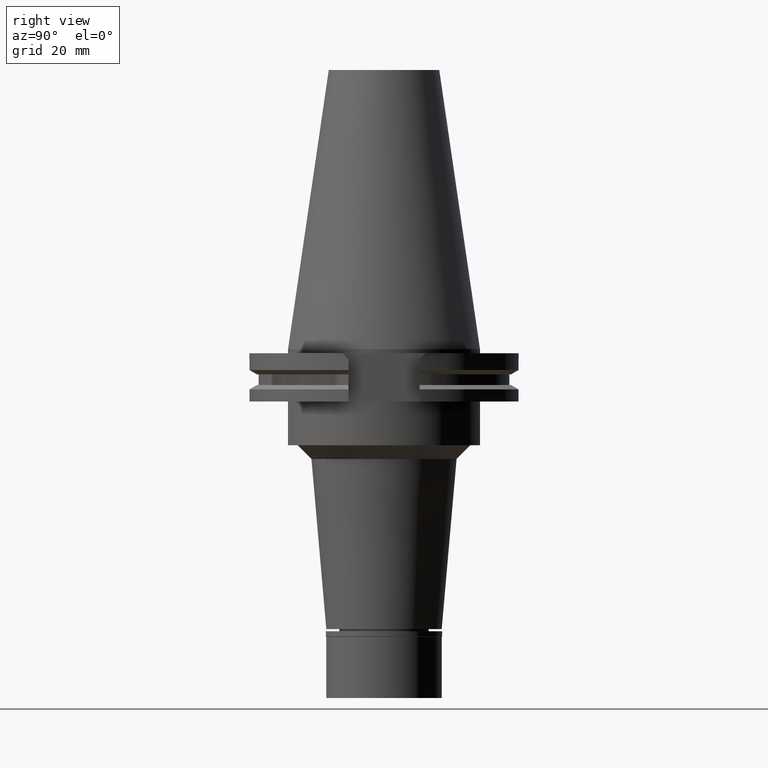
[diagram: clean part render]
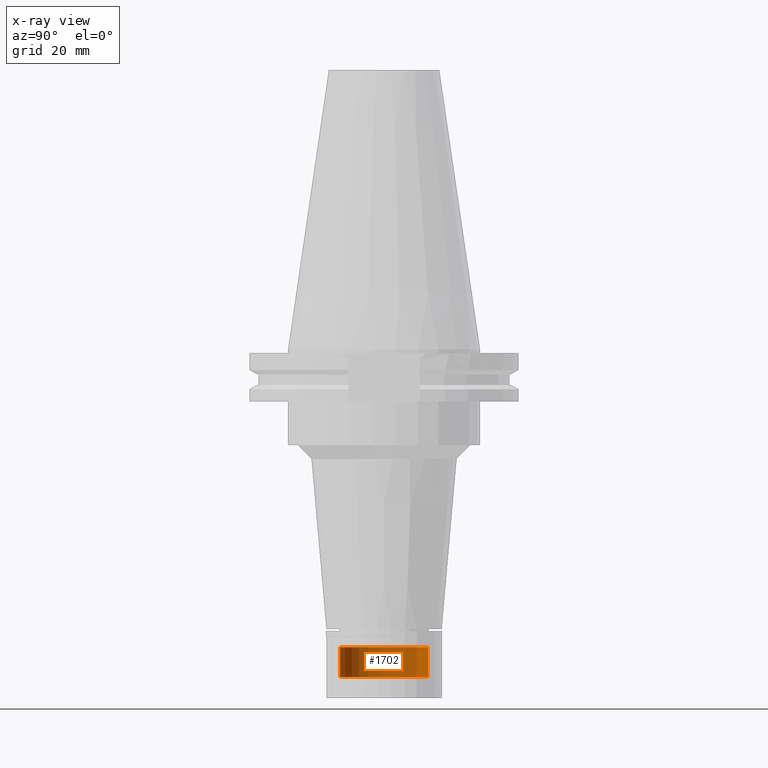
[diagram: x-ray — body ghosted, one internal face saturated and labeled with its STEP entity id]
A machine part, right view, then the same camera in x-ray: the body is ghosted and one INTERNAL B-rep face — a face not visible from any outside direction — is saturated and labeled: STEP entity #1702.
In plain terms, the highlighted cylindrical surface (partial cylindrical patch) has radius 16 mm, axis along (0, 0, -1).
Its self-contained STEP definition (entity closure, byte-faithful):
#108 = CARTESIAN_POINT ( 'NONE',  ( 0.0000000000000000000, -16.00000000000000000, -108.5000000000000000 ) ) ;
#258 = CARTESIAN_POINT ( 'NONE',  ( 0.0000000000000000000, 16.00000000000000000, -108.5000000000000000 ) ) ;
#275 = DIRECTION ( 'NONE',  ( 0.0000000000000000000, 1.000000000000000000, 0.0000000000000000000 ) ) ;
#293 = VERTEX_POINT ( 'NONE', #708 ) ;
#330 = VERTEX_POINT ( 'NONE', #1282 ) ;
#430 = ORIENTED_EDGE ( 'NONE', *, *, #1019, .F. ) ;
#496 = DIRECTION ( 'NONE',  ( 0.0000000000000000000, -1.000000000000000000, 0.0000000000000000000 ) ) ;
#708 = CARTESIAN_POINT ( 'NONE',  ( 0.0000000000000000000, -16.00000000000000000, -119.5000000000000000 ) ) ;
#772 = CARTESIAN_POINT ( 'NONE',  ( 0.0000000000000000000, 2.604272650726999704E-14, -108.5000000000000000 ) ) ;
#777 = CIRCLE ( 'NONE', #3165, 16.00000000000000000 ) ;
#1019 = EDGE_CURVE ( 'NONE', #3128, #293, #3002, .T. ) ;
#1098 = VECTOR ( 'NONE', #2477, 1000.000000000000000 ) ;
#1212 = LINE ( 'NONE', #3294, #2476 ) ;
#1282 = CARTESIAN_POINT ( 'NONE',  ( 0.0000000000000000000, 16.00000000000000000, -119.5000000000000000 ) ) ;
#1315 = EDGE_CURVE ( 'NONE', #3128, #2491, #777, .T. ) ;
#1437 = FACE_OUTER_BOUND ( 'NONE', #2076, .T. ) ;
#1523 = CARTESIAN_POINT ( 'NONE',  ( 0.0000000000000000000, 2.604272650726999704E-14, -119.5000000000000000 ) ) ;
#1661 = EDGE_CURVE ( 'NONE', #2491, #330, #1212, .T. ) ;
#1702 = ADVANCED_FACE ( 'NONE', ( #1437 ), #2486, .T. ) ;
#1932 = ORIENTED_EDGE ( 'NONE', *, *, #1315, .T. ) ;
#1988 = ORIENTED_EDGE ( 'NONE', *, *, #1661, .T. ) ;
#2020 = AXIS2_PLACEMENT_3D ( 'NONE', #3106, #2830, #496 ) ;
#2076 = EDGE_LOOP ( 'NONE', ( #2857, #430, #1932, #1988 ) ) ;
#2349 = DIRECTION ( 'NONE',  ( 0.0000000000000000000, 0.0000000000000000000, -1.000000000000000000 ) ) ;
#2439 = CIRCLE ( 'NONE', #2879, 16.00000000000000000 ) ;
#2476 = VECTOR ( 'NONE', #3281, 1000.000000000000000 ) ;
#2477 = DIRECTION ( 'NONE',  ( 0.0000000000000000000, 0.0000000000000000000, -1.000000000000000000 ) ) ;
#2486 = CYLINDRICAL_SURFACE ( 'NONE', #2020, 16.00000000000000000 ) ;
#2491 = VERTEX_POINT ( 'NONE', #258 ) ;
#2583 = EDGE_CURVE ( 'NONE', #330, #293, #2439, .T. ) ;
#2606 = DIRECTION ( 'NONE',  ( 0.0000000000000000000, 0.0000000000000000000, 1.000000000000000000 ) ) ;
#2830 = DIRECTION ( 'NONE',  ( 0.0000000000000000000, 0.0000000000000000000, -1.000000000000000000 ) ) ;
#2857 = ORIENTED_EDGE ( 'NONE', *, *, #2583, .T. ) ;
#2869 = DIRECTION ( 'NONE',  ( 0.0000000000000000000, -1.000000000000000000, 0.0000000000000000000 ) ) ;
#2879 = AXIS2_PLACEMENT_3D ( 'NONE', #1523, #2606, #275 ) ;
#3002 = LINE ( 'NONE', #3276, #1098 ) ;
#3106 = CARTESIAN_POINT ( 'NONE',  ( 0.0000000000000000000, 2.604272650726999704E-14, 112.6550000000000011 ) ) ;
#3128 = VERTEX_POINT ( 'NONE', #108 ) ;
#3165 = AXIS2_PLACEMENT_3D ( 'NONE', #772, #2349, #2869 ) ;
#3276 = CARTESIAN_POINT ( 'NONE',  ( 0.0000000000000000000, -16.00000000000000000, -108.5000000000000000 ) ) ;
#3281 = DIRECTION ( 'NONE',  ( 0.0000000000000000000, 0.0000000000000000000, -1.000000000000000000 ) ) ;
#3294 = CARTESIAN_POINT ( 'NONE',  ( 0.0000000000000000000, 16.00000000000000000, -108.5000000000000000 ) ) ;